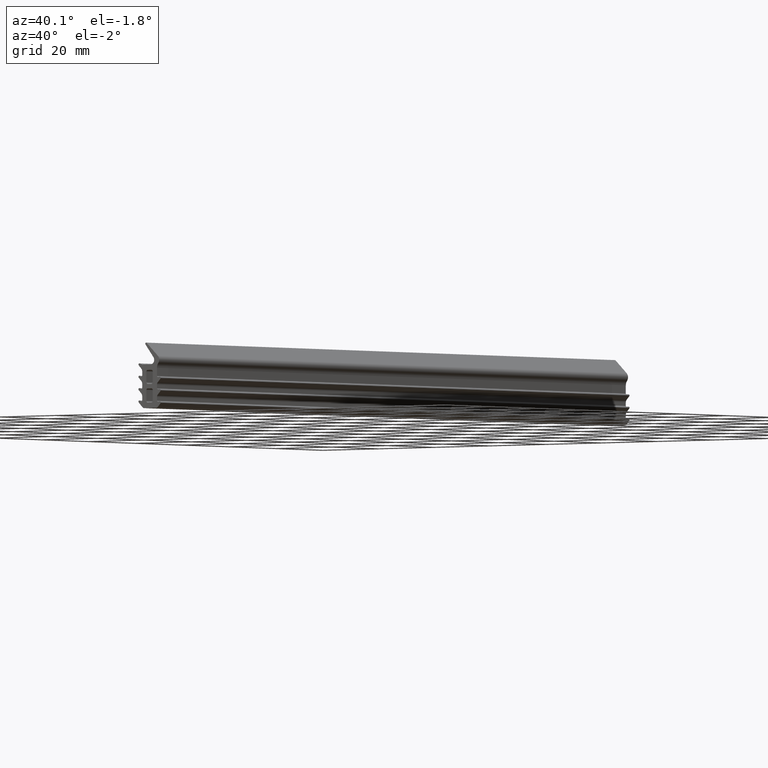
[diagram: clean part render]
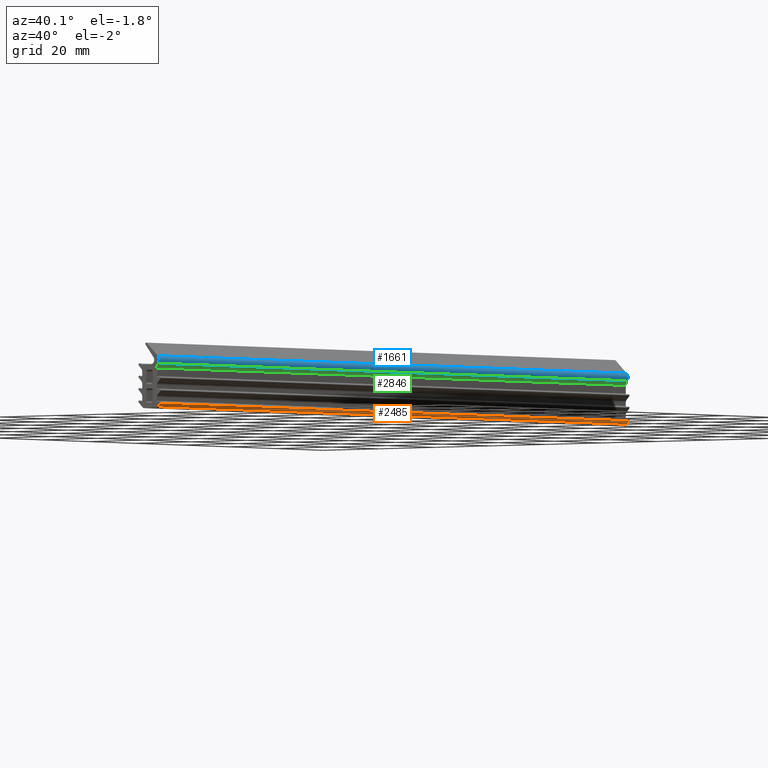
[diagram: same view with three faces highlighted in distinct colors, each labeled with its STEP entity id]
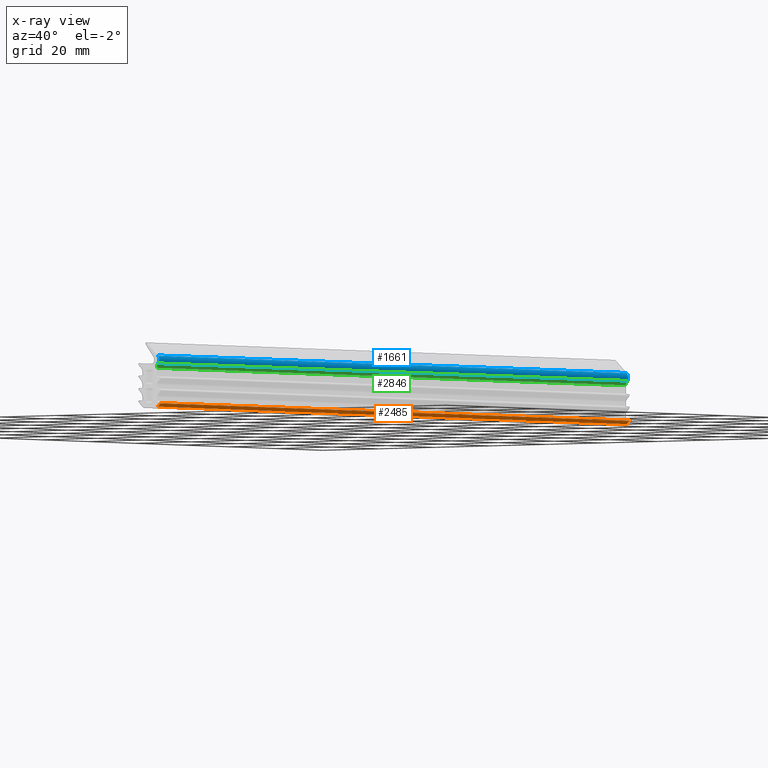
[diagram: x-ray of the same camera — body ghosted, the three highlighted faces saturated]
A machine part, auxiliary view with three faces highlighted in distinct colors.
The next image is the same camera in x-ray (body ghosted, the three faces saturated) — at least one of them is partly hidden behind the body in this view.
Their STEP definitions:

[orange] entity #2485 — the highlighted face is a freeform B-spline surface patch.
#429=CARTESIAN_POINT('',(3.002943867784580,0.0,0.292893232725014));
#430=VERTEX_POINT('',#429);
#444=CARTESIAN_POINT('',(3.915075945464315,0.0,1.205025310404930));
#445=VERTEX_POINT('',#444);
#446=CARTESIAN_POINT('',(3.915075945464315,0.0,1.205025310404930));
#447=CARTESIAN_POINT('',(3.002943867784580,0.0,0.292893232725014));
#448=QUASI_UNIFORM_CURVE('',1,(#446,#447),.UNSPECIFIED.,.F.,.U.);
#449=EDGE_CURVE('',#445,#430,#448,.T.);
#1001=CARTESIAN_POINT('',(3.915075945464315,200.0,1.205025310404930));
#1002=VERTEX_POINT('',#1001);
#1018=CARTESIAN_POINT('',(3.002943867784580,200.0,0.292893232725014));
#1019=VERTEX_POINT('',#1018);
#1020=CARTESIAN_POINT('',(3.915075945464315,200.0,1.205025310404930));
#1021=CARTESIAN_POINT('',(3.002943867784580,200.0,0.292893232725014));
#1022=QUASI_UNIFORM_CURVE('',1,(#1020,#1021),.UNSPECIFIED.,.F.,.U.);
#1023=EDGE_CURVE('',#1002,#1019,#1022,.T.);
#2462=CARTESIAN_POINT('',(3.002943867784580,200.0,0.292893232725014));
#2463=CARTESIAN_POINT('',(3.002943867784580,0.0,0.292893232725014));
#2464=QUASI_UNIFORM_CURVE('',1,(#2462,#2463),.UNSPECIFIED.,.F.,.U.);
#2465=EDGE_CURVE('',#1019,#430,#2464,.T.);
#2470=CARTESIAN_POINT('',(2.957382812335261,-9.989999612361171,0.247332177275689));
#2471=CARTESIAN_POINT('',(3.960636968293284,-9.989999612361169,1.250586333233835));
#2472=CARTESIAN_POINT('',(2.957382812335261,209.990004976779200,0.247332177275689));
#2473=CARTESIAN_POINT('',(3.960636968293284,209.990004976779200,1.250586333233835));
#2474=B_SPLINE_SURFACE_WITH_KNOTS('',1,1,((#2470,#2472),(#2471,#2473)),.UNSPECIFIED.,.F.,.F.,.U.,(2,2),(2,2),(0.041708280189335,0.958291690008342),(0.0,219.980004589140410),.UNSPECIFIED.);
#2475=ORIENTED_EDGE('',*,*,#449,.T.);
#2476=ORIENTED_EDGE('',*,*,#2465,.F.);
#2477=ORIENTED_EDGE('',*,*,#1023,.F.);
#2478=CARTESIAN_POINT('',(3.915075945464315,200.0,1.205025310404930));
#2479=CARTESIAN_POINT('',(3.915075945464315,0.0,1.205025310404930));
#2480=QUASI_UNIFORM_CURVE('',1,(#2478,#2479),.UNSPECIFIED.,.F.,.U.);
#2481=EDGE_CURVE('',#1002,#445,#2480,.T.);
#2482=ORIENTED_EDGE('',*,*,#2481,.T.);
#2483=EDGE_LOOP('',(#2475,#2476,#2477,#2482));
#2484=FACE_OUTER_BOUND('',#2483,.T.);
#2485=ADVANCED_FACE('',(#2484),#2474,.F.);

[blue] entity #1661 — the highlighted face is a freeform B-spline surface patch.
#49=CARTESIAN_POINT('',(3.107143004724690,0.0,12.245526690860981));
#50=VERTEX_POINT('',#49);
#66=CARTESIAN_POINT('',(2.955133468873470,0.0,14.313421980133480));
#67=VERTEX_POINT('',#66);
#68=CARTESIAN_POINT('',(3.107143004724689,0.0,12.245526690860981));
#69=CARTESIAN_POINT('',(4.019955195670076,0.0,13.352161578289236));
#70=CARTESIAN_POINT('',(2.955133468873470,0.0,14.313421980133480));
#78=(BOUNDED_CURVE()B_SPLINE_CURVE(2,(#68,#69,#70),.UNSPECIFIED.,.F.,.U.)CURVE()GEOMETRIC_REPRESENTATION_ITEM()QUASI_UNIFORM_CURVE()RATIONAL_B_SPLINE_CURVE((1.0,0.722703457091995,1.0))REPRESENTATION_ITEM(''));
#79=EDGE_CURVE('',#50,#67,#78,.T.);
#819=CARTESIAN_POINT('',(3.107143004724690,200.0,12.245526690860981));
#820=VERTEX_POINT('',#819);
#1381=CARTESIAN_POINT('',(2.955133468873470,200.0,14.313421980133480));
#1382=VERTEX_POINT('',#1381);
#1388=CARTESIAN_POINT('',(3.107143004724689,200.0,12.245526690860981));
#1389=CARTESIAN_POINT('',(4.019955195670076,200.000000000000090,13.352161578289236));
#1390=CARTESIAN_POINT('',(2.955133468873470,200.0,14.313421980133480));
#1398=(BOUNDED_CURVE()B_SPLINE_CURVE(2,(#1388,#1389,#1390),.UNSPECIFIED.,.F.,.U.)CURVE()GEOMETRIC_REPRESENTATION_ITEM()QUASI_UNIFORM_CURVE()RATIONAL_B_SPLINE_CURVE((1.0,0.722703457091995,1.0))REPRESENTATION_ITEM(''));
#1399=EDGE_CURVE('',#820,#1382,#1398,.T.);
#1633=CARTESIAN_POINT('',(2.914535533981765,205.0,14.348770227928910));
#1634=CARTESIAN_POINT('',(2.914535533981765,-5.125000000000000,14.348770227928910));
#1635=CARTESIAN_POINT('',(4.134331568629192,205.0,13.324599231704662));
#1636=CARTESIAN_POINT('',(4.134331568629192,-5.124999999999999,13.324599231704662));
#1637=CARTESIAN_POINT('',(3.038910255270071,205.0,12.168363640708110));
#1638=CARTESIAN_POINT('',(3.038910255270071,-5.125000000000001,12.168363640708110));
#1646=(BOUNDED_SURFACE()B_SPLINE_SURFACE(1,2,((#1633,#1635,#1637),(#1634,#1636,#1638)),.UNSPECIFIED.,.F.,.F.,.U.)B_SPLINE_SURFACE_WITH_KNOTS((2,2),(3,3),(0.0,210.125000000000110),(0.0,2.591308939530304),.UNSPECIFIED.)GEOMETRIC_REPRESENTATION_ITEM()RATIONAL_B_SPLINE_SURFACE(((1.0,0.684136750526553,0.995751978129722),(1.0,0.684136750526553,0.995751978129722)))REPRESENTATION_ITEM('')SURFACE());
#1647=ORIENTED_EDGE('',*,*,#79,.F.);
#1648=CARTESIAN_POINT('',(3.107143004724690,200.0,12.245526690860981));
#1649=CARTESIAN_POINT('',(3.107143004724690,0.0,12.245526690860981));
#1650=QUASI_UNIFORM_CURVE('',1,(#1648,#1649),.UNSPECIFIED.,.F.,.U.);
#1651=EDGE_CURVE('',#820,#50,#1650,.T.);
#1652=ORIENTED_EDGE('',*,*,#1651,.F.);
#1653=ORIENTED_EDGE('',*,*,#1399,.T.);
#1654=CARTESIAN_POINT('',(2.955133468873470,200.0,14.313421980133480));
#1655=CARTESIAN_POINT('',(2.955133468873470,0.0,14.313421980133480));
#1656=QUASI_UNIFORM_CURVE('',1,(#1654,#1655),.UNSPECIFIED.,.F.,.U.);
#1657=EDGE_CURVE('',#1382,#67,#1656,.T.);
#1658=ORIENTED_EDGE('',*,*,#1657,.T.);
#1659=EDGE_LOOP('',(#1647,#1652,#1653,#1658));
#1660=FACE_OUTER_BOUND('',#1659,.T.);
#1661=ADVANCED_FACE('',(#1660),#1646,.T.);

[green] entity #2846 — the highlighted face is a freeform B-spline surface patch.
#49=CARTESIAN_POINT('',(3.107143004724690,0.0,12.245526690860981));
#50=VERTEX_POINT('',#49);
#51=CARTESIAN_POINT('',(2.650000125868255,0.0,10.972894776054501));
#52=VERTEX_POINT('',#51);
#53=CARTESIAN_POINT('',(3.107143004724690,0.0,12.245526690860981));
#54=CARTESIAN_POINT('',(2.650000125868245,0.0,11.691316018284315));
#55=CARTESIAN_POINT('',(2.650000125868245,0.0,10.972894776054501));
#63=(BOUNDED_CURVE()B_SPLINE_CURVE(2,(#53,#54,#55),.UNSPECIFIED.,.F.,.U.)CURVE()GEOMETRIC_REPRESENTATION_ITEM()QUASI_UNIFORM_CURVE()RATIONAL_B_SPLINE_CURVE((1.0,0.941123948114390,1.0))REPRESENTATION_ITEM(''));
#64=EDGE_CURVE('',#50,#52,#63,.T.);
#819=CARTESIAN_POINT('',(3.107143004724690,200.0,12.245526690860981));
#820=VERTEX_POINT('',#819);
#821=CARTESIAN_POINT('',(2.650000125868255,200.0,10.972894776054501));
#822=VERTEX_POINT('',#821);
#823=CARTESIAN_POINT('',(3.107143004724690,200.0,12.245526690860981));
#824=CARTESIAN_POINT('',(2.650000125868245,200.0,11.691316018284315));
#825=CARTESIAN_POINT('',(2.650000125868245,200.0,10.972894776054501));
#833=(BOUNDED_CURVE()B_SPLINE_CURVE(2,(#823,#824,#825),.UNSPECIFIED.,.F.,.U.)CURVE()GEOMETRIC_REPRESENTATION_ITEM()QUASI_UNIFORM_CURVE()RATIONAL_B_SPLINE_CURVE((1.0,0.941123948114390,1.0))REPRESENTATION_ITEM(''));
#834=EDGE_CURVE('',#820,#822,#833,.T.);
#1648=CARTESIAN_POINT('',(3.107143004724690,200.0,12.245526690860981));
#1649=CARTESIAN_POINT('',(3.107143004724690,0.0,12.245526690860981));
#1650=QUASI_UNIFORM_CURVE('',1,(#1648,#1649),.UNSPECIFIED.,.F.,.U.);
#1651=EDGE_CURVE('',#820,#50,#1650,.T.);
#2818=CARTESIAN_POINT('',(2.650000125868255,200.0,10.972894776054501));
#2819=CARTESIAN_POINT('',(2.650000125868255,0.0,10.972894776054501));
#2820=QUASI_UNIFORM_CURVE('',1,(#2818,#2819),.UNSPECIFIED.,.F.,.U.);
#2821=EDGE_CURVE('',#822,#52,#2820,.T.);
#2826=CARTESIAN_POINT('',(2.651124658983887,205.000000000000030,10.905836084585836));
#2827=CARTESIAN_POINT('',(2.651124658983887,-5.125000000000000,10.905836084585836));
#2828=CARTESIAN_POINT('',(2.624455037025900,205.000000000000030,11.700800233286666));
#2829=CARTESIAN_POINT('',(2.624455037025900,-5.125000000000000,11.700800233286666));
#2830=CARTESIAN_POINT('',(3.151037760961462,205.000000000000030,12.296946105794081));
#2831=CARTESIAN_POINT('',(3.151037760961462,-5.125000000000000,12.296946105794081));
#2839=(BOUNDED_SURFACE()B_SPLINE_SURFACE(1,2,((#2826,#2828,#2830),(#2827,#2829,#2831)),.UNSPECIFIED.,.F.,.F.,.U.)B_SPLINE_SURFACE_WITH_KNOTS((2,2),(3,3),(0.0,210.125000000000000),(0.001359939134680,0.943004984849133),.UNSPECIFIED.)GEOMETRIC_REPRESENTATION_ITEM()RATIONAL_B_SPLINE_SURFACE(((0.999784076920511,0.925131465797024,0.991454814952560),(0.999784076920511,0.925131465797024,0.991454814952560)))REPRESENTATION_ITEM('')SURFACE());
#2840=ORIENTED_EDGE('',*,*,#64,.T.);
#2841=ORIENTED_EDGE('',*,*,#2821,.F.);
#2842=ORIENTED_EDGE('',*,*,#834,.F.);
#2843=ORIENTED_EDGE('',*,*,#1651,.T.);
#2844=EDGE_LOOP('',(#2840,#2841,#2842,#2843));
#2845=FACE_OUTER_BOUND('',#2844,.T.);
#2846=ADVANCED_FACE('',(#2845),#2839,.F.);